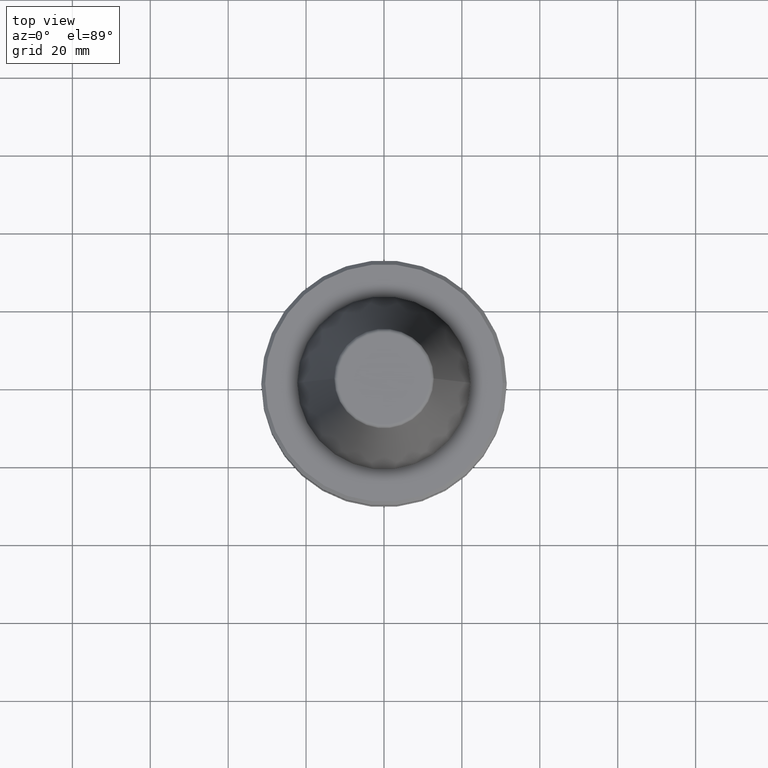
[diagram: clean part render]
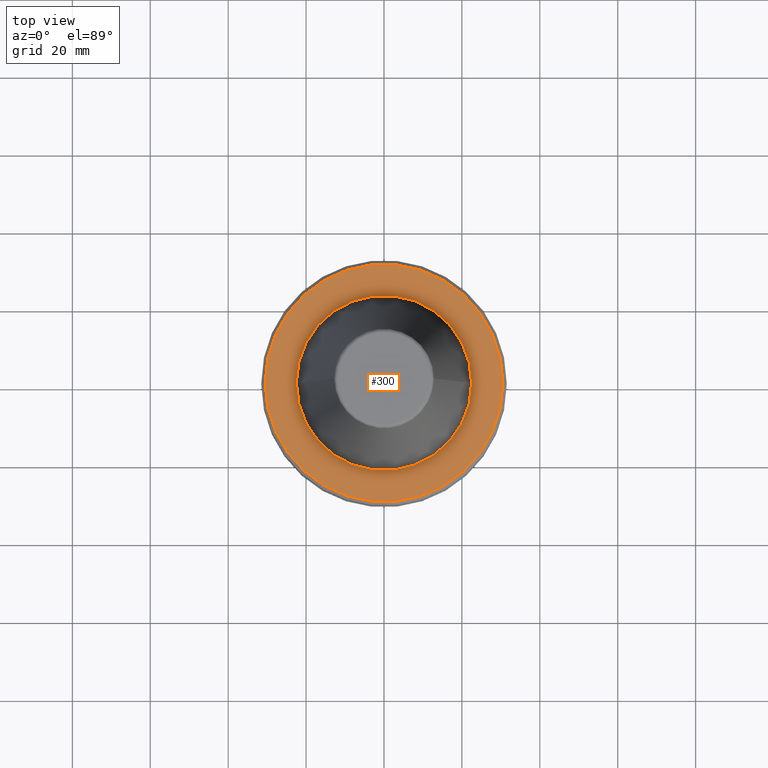
[diagram: same view with one face highlighted and labeled with its STEP entity id]
A machine part, top view. The second image highlights one B-rep face of the part: STEP entity #300.
In plain terms, the highlighted planar face has unit normal (0, 0, -1).
Its self-contained STEP definition (entity closure, byte-faithful):
#7 = DIRECTION ( 'NONE',  ( 0.0000000000000000000, 0.0000000000000000000, -1.000000000000000000 ) ) ;
#45 = FACE_OUTER_BOUND ( 'NONE', #781, .T. ) ;
#61 = VERTEX_POINT ( 'NONE', #352 ) ;
#87 = AXIS2_PLACEMENT_3D ( 'NONE', #240, #775, #966 ) ;
#88 = DIRECTION ( 'NONE',  ( -0.0000000000000000000, -0.0000000000000000000, 1.000000000000000000 ) ) ;
#98 = DIRECTION ( 'NONE',  ( -1.000000000000000000, 0.0000000000000000000, -0.0000000000000000000 ) ) ;
#106 = CARTESIAN_POINT ( 'NONE',  ( -30.49999999999975100, 0.0000000000000000000, -2.000000000000556900 ) ) ;
#107 = AXIS2_PLACEMENT_3D ( 'NONE', #526, #88, #852 ) ;
#109 = CARTESIAN_POINT ( 'NONE',  ( 30.49999999999975100, 3.796405077356764300E-015, -2.000000000000556900 ) ) ;
#111 = DIRECTION ( 'NONE',  ( 1.000000000000000000, 0.0000000000000000000, 0.0000000000000000000 ) ) ;
#216 = ORIENTED_EDGE ( 'NONE', *, *, #268, .T. ) ;
#220 = DIRECTION ( 'NONE',  ( -0.0000000000000000000, -0.0000000000000000000, 1.000000000000000000 ) ) ;
#240 = CARTESIAN_POINT ( 'NONE',  ( 0.0000000000000000000, 0.0000000000000000000, -2.000000000000556900 ) ) ;
#263 = VERTEX_POINT ( 'NONE', #109 ) ;
#268 = EDGE_CURVE ( 'NONE', #716, #263, #426, .T. ) ;
#281 = EDGE_LOOP ( 'NONE', ( #645, #395 ) ) ;
#289 = DIRECTION ( 'NONE',  ( -0.0000000000000000000, -0.0000000000000000000, 1.000000000000000000 ) ) ;
#300 = ADVANCED_FACE ( 'NONE', ( #551, #45 ), #521, .F. ) ;
#335 = AXIS2_PLACEMENT_3D ( 'NONE', #380, #220, #999 ) ;
#352 = CARTESIAN_POINT ( 'NONE',  ( 22.49999999999974400, 0.0000000000000000000, -2.000000000000570700 ) ) ;
#364 = CARTESIAN_POINT ( 'NONE',  ( 0.0000000000000000000, 0.0000000000000000000, -2.000000000000556900 ) ) ;
#380 = CARTESIAN_POINT ( 'NONE',  ( 0.0000000000000000000, 0.0000000000000000000, -2.000000000000556900 ) ) ;
#392 = EDGE_CURVE ( 'NONE', #263, #716, #497, .T. ) ;
#395 = ORIENTED_EDGE ( 'NONE', *, *, #554, .F. ) ;
#426 = CIRCLE ( 'NONE', #335, 30.49999999999975100 ) ;
#453 = CARTESIAN_POINT ( 'NONE',  ( -22.49999999999974400, 2.755455298081513200E-015, -2.000000000000570700 ) ) ;
#497 = CIRCLE ( 'NONE', #107, 30.49999999999975100 ) ;
#521 = PLANE ( 'NONE',  #649 ) ;
#526 = CARTESIAN_POINT ( 'NONE',  ( 0.0000000000000000000, 0.0000000000000000000, -2.000000000000556900 ) ) ;
#549 = AXIS2_PLACEMENT_3D ( 'NONE', #364, #289, #111 ) ;
#551 = FACE_BOUND ( 'NONE', #281, .T. ) ;
#554 = EDGE_CURVE ( 'NONE', #633, #61, #874, .T. ) ;
#559 = CIRCLE ( 'NONE', #87, 22.49999999999974400 ) ;
#611 = CARTESIAN_POINT ( 'NONE',  ( 0.0000000000000000000, 30.49999999999975100, -2.000000000000556900 ) ) ;
#633 = VERTEX_POINT ( 'NONE', #453 ) ;
#645 = ORIENTED_EDGE ( 'NONE', *, *, #942, .F. ) ;
#649 = AXIS2_PLACEMENT_3D ( 'NONE', #611, #7, #98 ) ;
#696 = ORIENTED_EDGE ( 'NONE', *, *, #392, .T. ) ;
#716 = VERTEX_POINT ( 'NONE', #106 ) ;
#775 = DIRECTION ( 'NONE',  ( -0.0000000000000000000, -0.0000000000000000000, 1.000000000000000000 ) ) ;
#781 = EDGE_LOOP ( 'NONE', ( #216, #696 ) ) ;
#852 = DIRECTION ( 'NONE',  ( 1.000000000000000000, 0.0000000000000000000, 0.0000000000000000000 ) ) ;
#874 = CIRCLE ( 'NONE', #549, 22.49999999999974400 ) ;
#942 = EDGE_CURVE ( 'NONE', #61, #633, #559, .T. ) ;
#966 = DIRECTION ( 'NONE',  ( 1.000000000000000000, 0.0000000000000000000, 0.0000000000000000000 ) ) ;
#999 = DIRECTION ( 'NONE',  ( 1.000000000000000000, 0.0000000000000000000, 0.0000000000000000000 ) ) ;